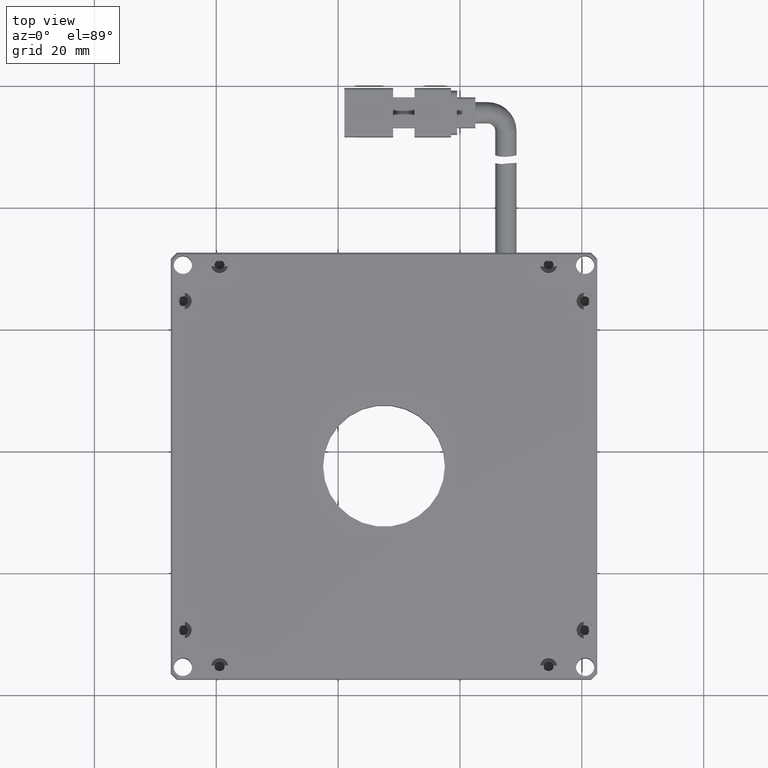
[diagram: clean part render]
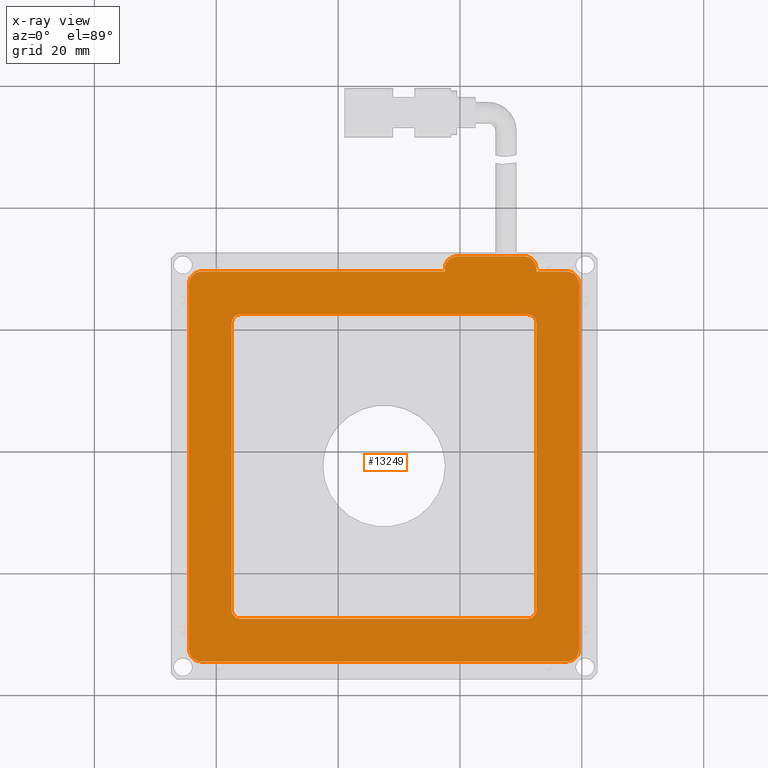
[diagram: x-ray — body ghosted, one internal face saturated and labeled with its STEP entity id]
A machine part, top view, then the same camera in x-ray: the body is ghosted and one INTERNAL B-rep face — a face not visible from any outside direction — is saturated and labeled: STEP entity #13249.
In plain terms, the highlighted planar face has unit normal (0, 0, 1).
Its self-contained STEP definition (entity closure, byte-faithful):
#26 = CIRCLE ( 'NONE', #7836, 2.000000000000001800 ) ;
#46 = ORIENTED_EDGE ( 'NONE', *, *, #19185, .T. ) ;
#51 = EDGE_CURVE ( 'NONE', #8747, #10728, #26, .T. ) ;
#261 = EDGE_CURVE ( 'NONE', #2294, #11927, #21149, .T. ) ;
#395 = DIRECTION ( 'NONE',  ( -0.0000000000000000000, 1.000000000000000000, 0.0000000000000000000 ) ) ;
#405 = LINE ( 'NONE', #11702, #18675 ) ;
#557 = CIRCLE ( 'NONE', #13723, 2.000000000000001800 ) ;
#817 = CARTESIAN_POINT ( 'NONE',  ( -2.466307106598973700, 69.53591370558376600, -2.000000000000000000 ) ) ;
#915 = CARTESIAN_POINT ( 'NONE',  ( -44.46630710659897500, 7.535913705583768200, -2.000000000000000000 ) ) ;
#1010 = EDGE_CURVE ( 'NONE', #1145, #17944, #3818, .T. ) ;
#1051 = DIRECTION ( 'NONE',  ( -0.0000000000000000000, -0.0000000000000000000, 1.000000000000000000 ) ) ;
#1066 = VECTOR ( 'NONE', #11513, 1000.000000000000000 ) ;
#1084 = VERTEX_POINT ( 'NONE', #2716 ) ;
#1145 = VERTEX_POINT ( 'NONE', #19554 ) ;
#1350 = CARTESIAN_POINT ( 'NONE',  ( 11.03369289340102500, 12.53591370558375800, -2.000000000000000000 ) ) ;
#1605 = EDGE_CURVE ( 'NONE', #2294, #19724, #7620, .T. ) ;
#1777 = CARTESIAN_POINT ( 'NONE',  ( -35.96630710659898300, 14.03591370558376300, -2.000000000000000000 ) ) ;
#1790 = LINE ( 'NONE', #5370, #6679 ) ;
#1805 = DIRECTION ( 'NONE',  ( -0.0000000000000000000, 1.000000000000000000, 0.0000000000000000000 ) ) ;
#1870 = CARTESIAN_POINT ( 'NONE',  ( -42.46630710659896800, 5.535913705583761100, -2.000000000000000000 ) ) ;
#2002 = DIRECTION ( 'NONE',  ( -1.000000000000000000, -0.0000000000000000000, 0.0000000000000000000 ) ) ;
#2105 = CARTESIAN_POINT ( 'NONE',  ( -42.46630710659897500, 5.535913705583761100, -2.000000000000000000 ) ) ;
#2186 = ORIENTED_EDGE ( 'NONE', *, *, #16551, .T. ) ;
#2255 = ORIENTED_EDGE ( 'NONE', *, *, #20094, .T. ) ;
#2294 = VERTEX_POINT ( 'NONE', #11478 ) ;
#2442 = DIRECTION ( 'NONE',  ( -0.0000000000000000000, -0.0000000000000000000, -1.000000000000000000 ) ) ;
#2449 = ORIENTED_EDGE ( 'NONE', *, *, #4052, .T. ) ;
#2523 = VERTEX_POINT ( 'NONE', #4014 ) ;
#2679 = VERTEX_POINT ( 'NONE', #9460 ) ;
#2716 = CARTESIAN_POINT ( 'NONE',  ( 19.53369289340102500, 67.53591370558376600, -2.000000000000000000 ) ) ;
#2767 = CARTESIAN_POINT ( 'NONE',  ( 17.53369289340102500, 5.535913705583761100, -2.000000000000000000 ) ) ;
#3154 = ORIENTED_EDGE ( 'NONE', *, *, #14146, .T. ) ;
#3165 = ORIENTED_EDGE ( 'NONE', *, *, #19306, .T. ) ;
#3413 = DIRECTION ( 'NONE',  ( -0.0000000000000000000, -0.0000000000000000000, 1.000000000000000000 ) ) ;
#3468 = CARTESIAN_POINT ( 'NONE',  ( 11.03369289340102500, 14.03591370558375900, -2.000000000000000000 ) ) ;
#3818 = CIRCLE ( 'NONE', #15955, 2.000000000000001800 ) ;
#4014 = CARTESIAN_POINT ( 'NONE',  ( 17.53369289340102500, 69.53591370558376600, -2.000000000000000000 ) ) ;
#4052 = EDGE_CURVE ( 'NONE', #17944, #17220, #10312, .T. ) ;
#4368 = ORIENTED_EDGE ( 'NONE', *, *, #51, .T. ) ;
#4445 = DIRECTION ( 'NONE',  ( -0.0000000000000000000, -0.0000000000000000000, 1.000000000000000000 ) ) ;
#4527 = EDGE_CURVE ( 'NONE', #6491, #8747, #8737, .T. ) ;
#4591 = CARTESIAN_POINT ( 'NONE',  ( 17.53369289340102500, 7.535913705583761900, -2.000000000000000000 ) ) ;
#4945 = VERTEX_POINT ( 'NONE', #7997 ) ;
#4980 = AXIS2_PLACEMENT_3D ( 'NONE', #21122, #1051, #7722 ) ;
#5197 = VERTEX_POINT ( 'NONE', #15316 ) ;
#5208 = VECTOR ( 'NONE', #20678, 1000.000000000000000 ) ;
#5297 = CARTESIAN_POINT ( 'NONE',  ( -0.4663071065989718400, 70.03591370558376600, -1.999999999999999100 ) ) ;
#5340 = DIRECTION ( 'NONE',  ( 1.000000000000000000, 0.0000000000000000000, 0.0000000000000000000 ) ) ;
#5370 = CARTESIAN_POINT ( 'NONE',  ( 12.53369289340103300, 70.03591370558376600, -1.999999999999999100 ) ) ;
#5447 = DIRECTION ( 'NONE',  ( -1.000000000000000000, 1.387778780781445700E-016, -0.0000000000000000000 ) ) ;
#5530 = ORIENTED_EDGE ( 'NONE', *, *, #11070, .T. ) ;
#5610 = CARTESIAN_POINT ( 'NONE',  ( -2.466307106598973700, 70.03591370558376600, -1.999999999999999100 ) ) ;
#5726 = VERTEX_POINT ( 'NONE', #5610 ) ;
#5954 = PLANE ( 'NONE',  #11060 ) ;
#6061 = VERTEX_POINT ( 'NONE', #13280 ) ;
#6071 = CARTESIAN_POINT ( 'NONE',  ( -37.46630710659898300, 12.53591370558376100, -2.000000000000000000 ) ) ;
#6341 = LINE ( 'NONE', #10006, #15080 ) ;
#6491 = VERTEX_POINT ( 'NONE', #1870 ) ;
#6581 = CARTESIAN_POINT ( 'NONE',  ( -44.46630710659898300, 7.535913705583761900, -2.000000000000000000 ) ) ;
#6614 = DIRECTION ( 'NONE',  ( -0.0000000000000000000, -0.0000000000000000000, -1.000000000000000000 ) ) ;
#6658 = VECTOR ( 'NONE', #10021, 1000.000000000000000 ) ;
#6679 = VECTOR ( 'NONE', #395, 1000.000000000000000 ) ;
#7269 = LINE ( 'NONE', #19858, #21198 ) ;
#7319 = CARTESIAN_POINT ( 'NONE',  ( -42.46630710659897500, 7.535913705583761900, -2.000000000000000000 ) ) ;
#7620 = LINE ( 'NONE', #6071, #13260 ) ;
#7715 = ORIENTED_EDGE ( 'NONE', *, *, #4527, .T. ) ;
#7722 = DIRECTION ( 'NONE',  ( 1.000000000000000000, 0.0000000000000000000, 0.0000000000000000000 ) ) ;
#7836 = AXIS2_PLACEMENT_3D ( 'NONE', #4591, #19489, #17735 ) ;
#7855 = ORIENTED_EDGE ( 'NONE', *, *, #14518, .F. ) ;
#7903 = EDGE_CURVE ( 'NONE', #2523, #15363, #11860, .T. ) ;
#7997 = CARTESIAN_POINT ( 'NONE',  ( 12.53369289340103300, 61.03591370558375900, -2.000000000000000000 ) ) ;
#8040 = ORIENTED_EDGE ( 'NONE', *, *, #1010, .T. ) ;
#8196 = EDGE_CURVE ( 'NONE', #2679, #14970, #17798, .T. ) ;
#8266 = CIRCLE ( 'NONE', #12749, 1.500000000000001300 ) ;
#8318 = VERTEX_POINT ( 'NONE', #16314 ) ;
#8481 = AXIS2_PLACEMENT_3D ( 'NONE', #5297, #3413, #11726 ) ;
#8737 = LINE ( 'NONE', #2105, #6658 ) ;
#8747 = VERTEX_POINT ( 'NONE', #2767 ) ;
#8985 = CIRCLE ( 'NONE', #4980, 2.000000000000001800 ) ;
#9119 = DIRECTION ( 'NONE',  ( 1.000000000000000000, 0.0000000000000000000, -0.0000000000000000000 ) ) ;
#9160 = FACE_OUTER_BOUND ( 'NONE', #11371, .T. ) ;
#9193 = CARTESIAN_POINT ( 'NONE',  ( 11.03369289340102500, 62.53591370558377300, -2.000000000000000000 ) ) ;
#9460 = CARTESIAN_POINT ( 'NONE',  ( 12.53369289340103300, 70.03591370558376600, -1.999999999999999100 ) ) ;
#9530 = ORIENTED_EDGE ( 'NONE', *, *, #261, .T. ) ;
#9668 = CARTESIAN_POINT ( 'NONE',  ( 19.53369289340102500, 7.535913705583769100, -2.000000000000000000 ) ) ;
#10006 = CARTESIAN_POINT ( 'NONE',  ( 19.53369289340102500, 7.535913705583761900, -2.000000000000000000 ) ) ;
#10021 = DIRECTION ( 'NONE',  ( 1.000000000000000000, 0.0000000000000000000, -0.0000000000000000000 ) ) ;
#10153 = DIRECTION ( 'NONE',  ( -1.000000000000000000, -0.0000000000000000000, 0.0000000000000000000 ) ) ;
#10219 = CARTESIAN_POINT ( 'NONE',  ( -42.46630710659897500, 69.53591370558376600, -2.000000000000000000 ) ) ;
#10312 = LINE ( 'NONE', #6581, #1066 ) ;
#10360 = LINE ( 'NONE', #15088, #17561 ) ;
#10422 = ORIENTED_EDGE ( 'NONE', *, *, #1605, .F. ) ;
#10489 = CARTESIAN_POINT ( 'NONE',  ( -35.96630710659897500, 61.03591370558376600, -2.000000000000000000 ) ) ;
#10524 = DIRECTION ( 'NONE',  ( 1.000000000000000000, 0.0000000000000000000, 0.0000000000000000000 ) ) ;
#10542 = DIRECTION ( 'NONE',  ( 0.0000000000000000000, 0.0000000000000000000, 1.000000000000000000 ) ) ;
#10625 = ORIENTED_EDGE ( 'NONE', *, *, #19937, .F. ) ;
#10697 = ORIENTED_EDGE ( 'NONE', *, *, #21060, .T. ) ;
#10728 = VERTEX_POINT ( 'NONE', #9668 ) ;
#10934 = FACE_BOUND ( 'NONE', #14870, .T. ) ;
#11060 = AXIS2_PLACEMENT_3D ( 'NONE', #7319, #10542, #9119 ) ;
#11070 = EDGE_CURVE ( 'NONE', #5726, #20675, #17785, .T. ) ;
#11106 = VECTOR ( 'NONE', #18977, 1000.000000000000000 ) ;
#11219 = CARTESIAN_POINT ( 'NONE',  ( 10.53369289340102500, 72.03591370558376600, -1.999999999999999100 ) ) ;
#11371 = EDGE_LOOP ( 'NONE', ( #15193, #3165, #11985, #15513, #18025, #10697, #19832, #5530, #2186, #8040, #2449, #14345, #7715, #4368 ) ) ;
#11478 = CARTESIAN_POINT ( 'NONE',  ( -35.96630710659898300, 12.53591370558376100, -2.000000000000000000 ) ) ;
#11513 = DIRECTION ( 'NONE',  ( 0.0000000000000000000, -1.000000000000000000, -0.0000000000000000000 ) ) ;
#11702 = CARTESIAN_POINT ( 'NONE',  ( -42.46630710659897500, 69.53591370558376600, -2.000000000000000000 ) ) ;
#11726 = DIRECTION ( 'NONE',  ( 1.000000000000000000, 0.0000000000000000000, 0.0000000000000000000 ) ) ;
#11860 = LINE ( 'NONE', #10219, #18849 ) ;
#11890 = CIRCLE ( 'NONE', #8481, 2.000000000000001800 ) ;
#11927 = VERTEX_POINT ( 'NONE', #19276 ) ;
#11985 = ORIENTED_EDGE ( 'NONE', *, *, #7903, .T. ) ;
#12749 = AXIS2_PLACEMENT_3D ( 'NONE', #3468, #6614, #14730 ) ;
#13249 = ADVANCED_FACE ( 'NONE', ( #10934, #9160 ), #5954, .T. ) ;
#13260 = VECTOR ( 'NONE', #17411, 1000.000000000000000 ) ;
#13280 = CARTESIAN_POINT ( 'NONE',  ( -37.46630710659897500, 61.03591370558376600, -2.000000000000000000 ) ) ;
#13569 = DIRECTION ( 'NONE',  ( -0.0000000000000000000, -0.0000000000000000000, 1.000000000000000000 ) ) ;
#13606 = CIRCLE ( 'NONE', #18018, 1.500000000000001300 ) ;
#13723 = AXIS2_PLACEMENT_3D ( 'NONE', #20013, #13569, #5340 ) ;
#13891 = DIRECTION ( 'NONE',  ( -0.0000000000000000000, -0.0000000000000000000, -1.000000000000000000 ) ) ;
#13934 = DIRECTION ( 'NONE',  ( 1.000000000000000000, 0.0000000000000000000, 0.0000000000000000000 ) ) ;
#13948 = CARTESIAN_POINT ( 'NONE',  ( -2.466307106598973700, 70.03591370558376600, -1.999999999999999100 ) ) ;
#13954 = CARTESIAN_POINT ( 'NONE',  ( 12.53369289340104100, 69.53591370558376600, -2.000000000000000000 ) ) ;
#14043 = CARTESIAN_POINT ( 'NONE',  ( 11.03369289340102500, 61.03591370558375900, -2.000000000000000000 ) ) ;
#14146 = EDGE_CURVE ( 'NONE', #6061, #19390, #17594, .T. ) ;
#14345 = ORIENTED_EDGE ( 'NONE', *, *, #15567, .T. ) ;
#14443 = CARTESIAN_POINT ( 'NONE',  ( -44.46630710659898300, 67.53591370558376600, -2.000000000000000000 ) ) ;
#14518 = EDGE_CURVE ( 'NONE', #6061, #11927, #7269, .T. ) ;
#14730 = DIRECTION ( 'NONE',  ( 1.000000000000000000, 0.0000000000000000000, 0.0000000000000000000 ) ) ;
#14853 = DIRECTION ( 'NONE',  ( -0.0000000000000000000, -0.0000000000000000000, -1.000000000000000000 ) ) ;
#14870 = EDGE_LOOP ( 'NONE', ( #7855, #3154, #10625, #2255, #16906, #46, #10422, #9530 ) ) ;
#14889 = AXIS2_PLACEMENT_3D ( 'NONE', #19342, #4445, #17527 ) ;
#14970 = VERTEX_POINT ( 'NONE', #11219 ) ;
#15080 = VECTOR ( 'NONE', #1805, 1000.000000000000000 ) ;
#15088 = CARTESIAN_POINT ( 'NONE',  ( -42.46630710659897500, 72.03591370558376600, -2.000000000000000000 ) ) ;
#15193 = ORIENTED_EDGE ( 'NONE', *, *, #17560, .T. ) ;
#15316 = CARTESIAN_POINT ( 'NONE',  ( 12.53369289340102600, 14.03591370558375900, -2.000000000000000000 ) ) ;
#15327 = EDGE_CURVE ( 'NONE', #15363, #2679, #1790, .T. ) ;
#15363 = VERTEX_POINT ( 'NONE', #13954 ) ;
#15513 = ORIENTED_EDGE ( 'NONE', *, *, #15327, .T. ) ;
#15567 = EDGE_CURVE ( 'NONE', #17220, #6491, #8985, .T. ) ;
#15955 = AXIS2_PLACEMENT_3D ( 'NONE', #19270, #20784, #16012 ) ;
#16012 = DIRECTION ( 'NONE',  ( 1.000000000000000000, 0.0000000000000000000, 0.0000000000000000000 ) ) ;
#16289 = LINE ( 'NONE', #17308, #11106 ) ;
#16314 = CARTESIAN_POINT ( 'NONE',  ( -0.4663071065989718400, 72.03591370558376600, -1.999999999999999100 ) ) ;
#16551 = EDGE_CURVE ( 'NONE', #20675, #1145, #405, .T. ) ;
#16604 = DIRECTION ( 'NONE',  ( -1.734723475976806800E-016, -1.000000000000000000, -0.0000000000000000000 ) ) ;
#16799 = VERTEX_POINT ( 'NONE', #9193 ) ;
#16800 = CARTESIAN_POINT ( 'NONE',  ( -37.46630710659897500, 62.53591370558378800, -2.000000000000000000 ) ) ;
#16822 = DIRECTION ( 'NONE',  ( -1.000000000000000000, -0.0000000000000000000, 0.0000000000000000000 ) ) ;
#16906 = ORIENTED_EDGE ( 'NONE', *, *, #21162, .F. ) ;
#17220 = VERTEX_POINT ( 'NONE', #915 ) ;
#17308 = CARTESIAN_POINT ( 'NONE',  ( 12.53369289340103300, 62.53591370558377300, -2.000000000000000000 ) ) ;
#17411 = DIRECTION ( 'NONE',  ( 1.000000000000000000, -3.469446951953614200E-017, -0.0000000000000000000 ) ) ;
#17449 = AXIS2_PLACEMENT_3D ( 'NONE', #10489, #2442, #13934 ) ;
#17527 = DIRECTION ( 'NONE',  ( 1.000000000000000000, 0.0000000000000000000, 0.0000000000000000000 ) ) ;
#17560 = EDGE_CURVE ( 'NONE', #10728, #1084, #6341, .T. ) ;
#17561 = VECTOR ( 'NONE', #2002, 1000.000000000000000 ) ;
#17594 = CIRCLE ( 'NONE', #17449, 1.500000000000001300 ) ;
#17735 = DIRECTION ( 'NONE',  ( 1.000000000000000000, 0.0000000000000000000, 0.0000000000000000000 ) ) ;
#17785 = LINE ( 'NONE', #13948, #5208 ) ;
#17798 = CIRCLE ( 'NONE', #14889, 2.000000000000001800 ) ;
#17944 = VERTEX_POINT ( 'NONE', #14443 ) ;
#18018 = AXIS2_PLACEMENT_3D ( 'NONE', #14043, #13891, #10524 ) ;
#18025 = ORIENTED_EDGE ( 'NONE', *, *, #8196, .T. ) ;
#18262 = VECTOR ( 'NONE', #5447, 1000.000000000000000 ) ;
#18527 = LINE ( 'NONE', #16800, #18262 ) ;
#18675 = VECTOR ( 'NONE', #16822, 1000.000000000000000 ) ;
#18737 = EDGE_CURVE ( 'NONE', #8318, #5726, #11890, .T. ) ;
#18849 = VECTOR ( 'NONE', #10153, 1000.000000000000000 ) ;
#18977 = DIRECTION ( 'NONE',  ( 1.387778780781445700E-016, 1.000000000000000000, -0.0000000000000000000 ) ) ;
#19185 = EDGE_CURVE ( 'NONE', #5197, #19724, #8266, .T. ) ;
#19270 = CARTESIAN_POINT ( 'NONE',  ( -42.46630710659898300, 67.53591370558376600, -2.000000000000000000 ) ) ;
#19276 = CARTESIAN_POINT ( 'NONE',  ( -37.46630710659898300, 14.03591370558376300, -2.000000000000000000 ) ) ;
#19306 = EDGE_CURVE ( 'NONE', #1084, #2523, #557, .T. ) ;
#19342 = CARTESIAN_POINT ( 'NONE',  ( 10.53369289340102500, 70.03591370558376600, -1.999999999999999100 ) ) ;
#19390 = VERTEX_POINT ( 'NONE', #20423 ) ;
#19489 = DIRECTION ( 'NONE',  ( -0.0000000000000000000, -0.0000000000000000000, 1.000000000000000000 ) ) ;
#19554 = CARTESIAN_POINT ( 'NONE',  ( -42.46630710659897500, 69.53591370558376600, -2.000000000000000000 ) ) ;
#19724 = VERTEX_POINT ( 'NONE', #1350 ) ;
#19832 = ORIENTED_EDGE ( 'NONE', *, *, #18737, .T. ) ;
#19858 = CARTESIAN_POINT ( 'NONE',  ( -37.46630710659897500, 62.53591370558378800, -2.000000000000000000 ) ) ;
#19937 = EDGE_CURVE ( 'NONE', #16799, #19390, #18527, .T. ) ;
#20013 = CARTESIAN_POINT ( 'NONE',  ( 17.53369289340102500, 67.53591370558376600, -2.000000000000000000 ) ) ;
#20094 = EDGE_CURVE ( 'NONE', #16799, #4945, #13606, .T. ) ;
#20280 = AXIS2_PLACEMENT_3D ( 'NONE', #1777, #14853, #21295 ) ;
#20423 = CARTESIAN_POINT ( 'NONE',  ( -35.96630710659897500, 62.53591370558377300, -2.000000000000000000 ) ) ;
#20675 = VERTEX_POINT ( 'NONE', #817 ) ;
#20678 = DIRECTION ( 'NONE',  ( -0.0000000000000000000, -1.000000000000000000, 0.0000000000000000000 ) ) ;
#20784 = DIRECTION ( 'NONE',  ( -0.0000000000000000000, -0.0000000000000000000, 1.000000000000000000 ) ) ;
#21060 = EDGE_CURVE ( 'NONE', #14970, #8318, #10360, .T. ) ;
#21122 = CARTESIAN_POINT ( 'NONE',  ( -42.46630710659897500, 7.535913705583761900, -2.000000000000000000 ) ) ;
#21149 = CIRCLE ( 'NONE', #20280, 1.500000000000001300 ) ;
#21162 = EDGE_CURVE ( 'NONE', #5197, #4945, #16289, .T. ) ;
#21198 = VECTOR ( 'NONE', #16604, 1000.000000000000000 ) ;
#21295 = DIRECTION ( 'NONE',  ( 1.000000000000000000, 0.0000000000000000000, 0.0000000000000000000 ) ) ;